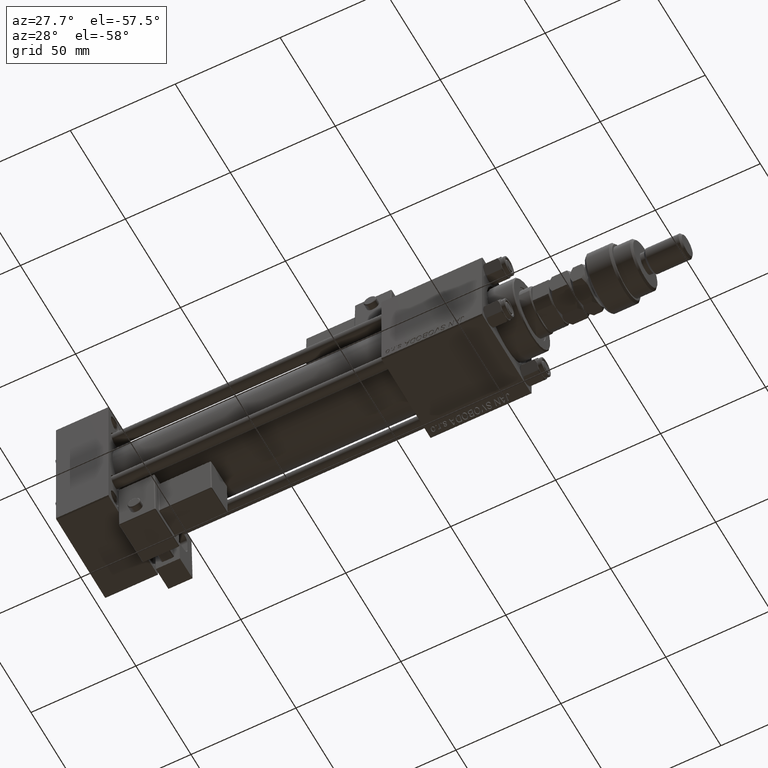
[diagram: clean part render]
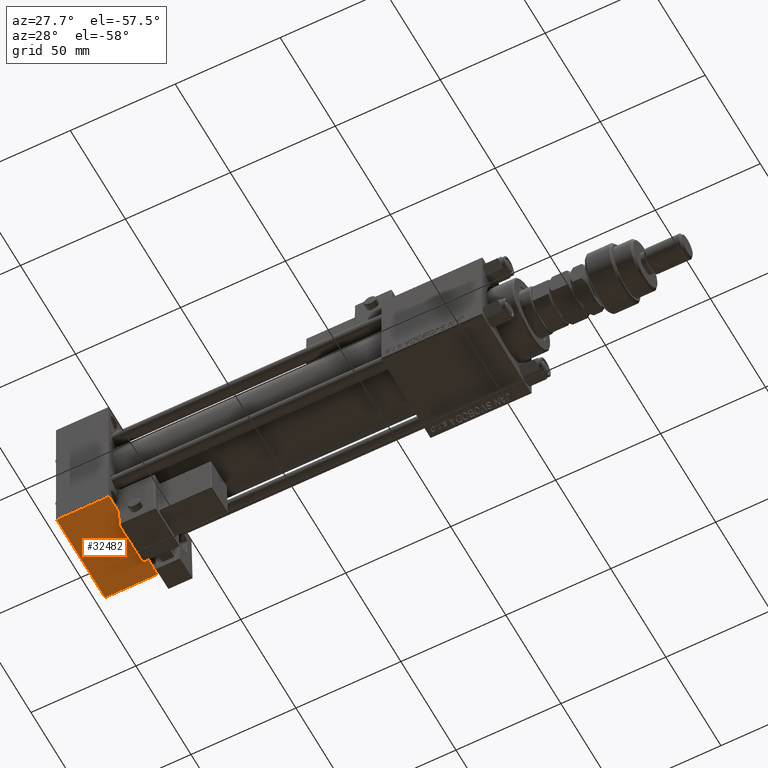
[diagram: same view with one face highlighted and labeled with its STEP entity id]
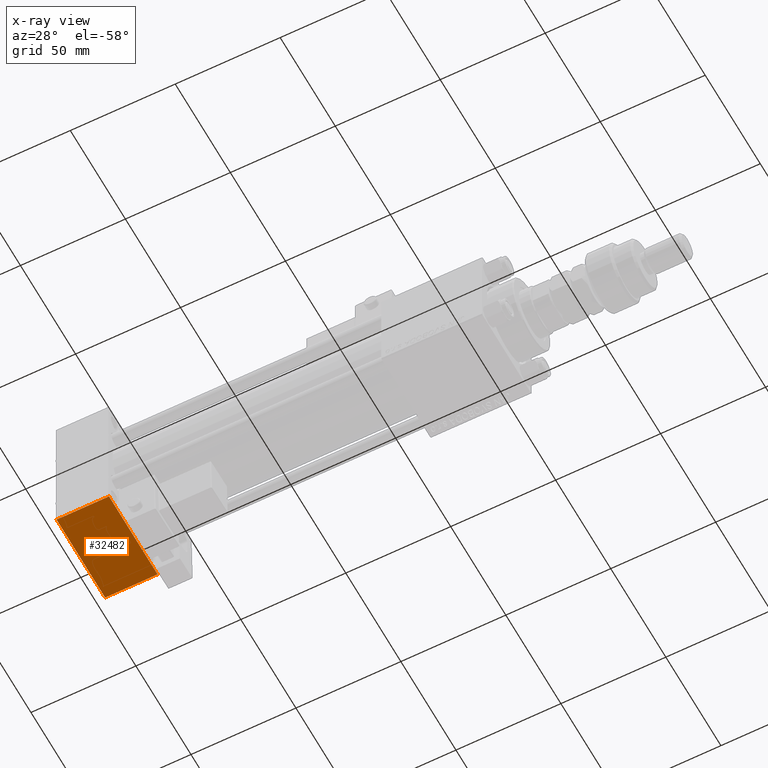
[diagram: x-ray of the same camera — body ghosted, the highlighted face saturated]
A machine part, auxiliary view. The second image highlights one B-rep face of the part: STEP entity #32482.
The next image is the same camera in x-ray: the body ghosted, the highlighted face saturated — about 0% of this face is hidden behind the body in this view.
In plain terms, the highlighted planar face has unit normal (0, 0, -1).
Its self-contained STEP definition (entity closure, byte-faithful):
#869 = DIRECTION ( 'NONE',  ( 0.000000000000000000, 1.000000000000000000, 1.541976423090495387E-16 ) ) ;
#871 = LINE ( 'NONE', #35353, #19519 ) ;
#1258 = DIRECTION ( 'NONE',  ( -1.000000000000000000, 0.000000000000000000, 0.000000000000000000 ) ) ;
#1484 = LINE ( 'NONE', #44054, #7061 ) ;
#1545 = ORIENTED_EDGE ( 'NONE', *, *, #15006, .F. ) ;
#2425 = EDGE_LOOP ( 'NONE', ( #1545, #13702, #23959, #41290 ) ) ;
#4527 = CARTESIAN_POINT ( 'NONE',  ( 25.00000000000000000, 21.99999999999999645, -34.99999999999999289 ) ) ;
#7061 = VECTOR ( 'NONE', #18444, 1000.000000000000000 ) ;
#9869 = LINE ( 'NONE', #52194, #39341 ) ;
#10279 = CARTESIAN_POINT ( 'NONE',  ( 25.00000000000000000, -21.99999999999998934, -35.00000000000000000 ) ) ;
#13702 = ORIENTED_EDGE ( 'NONE', *, *, #19229, .T. ) ;
#14767 = CARTESIAN_POINT ( 'NONE',  ( 0.000000000000000000, 21.99999999999999645, -34.99999999999999289 ) ) ;
#15006 = EDGE_CURVE ( 'NONE', #28039, #24485, #1484, .T. ) ;
#17273 = CARTESIAN_POINT ( 'NONE',  ( 25.00000000000000000, 22.50000000000000355, -34.99999999999999289 ) ) ;
#18444 = DIRECTION ( 'NONE',  ( 0.000000000000000000, -1.000000000000000000, -1.541976423090495387E-16 ) ) ;
#19229 = EDGE_CURVE ( 'NONE', #28039, #35008, #871, .T. ) ;
#19519 = VECTOR ( 'NONE', #52364, 1000.000000000000000 ) ;
#23959 = ORIENTED_EDGE ( 'NONE', *, *, #41283, .T. ) ;
#24485 = VERTEX_POINT ( 'NONE', #41722 ) ;
#24875 = VECTOR ( 'NONE', #41992, 1000.000000000000000 ) ;
#25018 = CARTESIAN_POINT ( 'NONE',  ( 25.00000000000000000, 22.50000000000000355, -34.99999999999999289 ) ) ;
#25636 = PLANE ( 'NONE',  #32519 ) ;
#28039 = VERTEX_POINT ( 'NONE', #14767 ) ;
#28192 = VERTEX_POINT ( 'NONE', #10279 ) ;
#32482 = ADVANCED_FACE ( 'NONE', ( #46795 ), #25636, .T. ) ;
#32519 = AXIS2_PLACEMENT_3D ( 'NONE', #17273, #33710, #869 ) ;
#33710 = DIRECTION ( 'NONE',  ( 0.000000000000000000, 1.541976423090495387E-16, -1.000000000000000000 ) ) ;
#35008 = VERTEX_POINT ( 'NONE', #4527 ) ;
#35353 = CARTESIAN_POINT ( 'NONE',  ( 25.00000000000000000, 21.99999999999999645, -34.99999999999999289 ) ) ;
#39341 = VECTOR ( 'NONE', #1258, 1000.000000000000000 ) ;
#41283 = EDGE_CURVE ( 'NONE', #35008, #28192, #50072, .T. ) ;
#41290 = ORIENTED_EDGE ( 'NONE', *, *, #54221, .T. ) ;
#41722 = CARTESIAN_POINT ( 'NONE',  ( 0.000000000000000000, -21.99999999999998934, -35.00000000000000000 ) ) ;
#41992 = DIRECTION ( 'NONE',  ( 0.000000000000000000, -1.000000000000000000, -1.541976423090495387E-16 ) ) ;
#44054 = CARTESIAN_POINT ( 'NONE',  ( 0.000000000000000000, 22.50000000000000355, -34.99999999999999289 ) ) ;
#46795 = FACE_OUTER_BOUND ( 'NONE', #2425, .T. ) ;
#50072 = LINE ( 'NONE', #25018, #24875 ) ;
#52194 = CARTESIAN_POINT ( 'NONE',  ( 0.000000000000000000, -22.00000000000000355, -35.00000000000000000 ) ) ;
#52364 = DIRECTION ( 'NONE',  ( 1.000000000000000000, 0.000000000000000000, 0.000000000000000000 ) ) ;
#54221 = EDGE_CURVE ( 'NONE', #28192, #24485, #9869, .T. ) ;